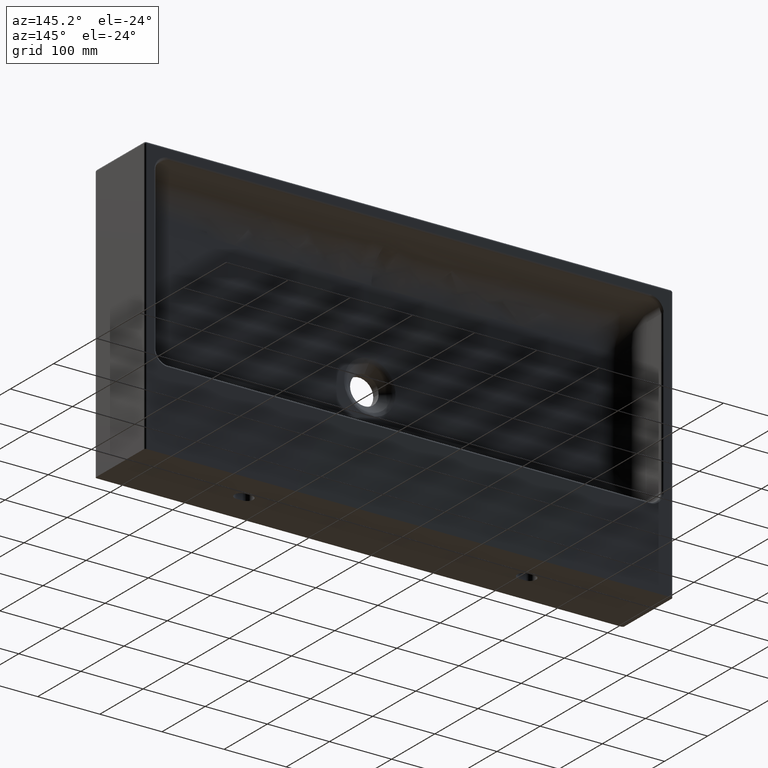
[diagram: clean part render]
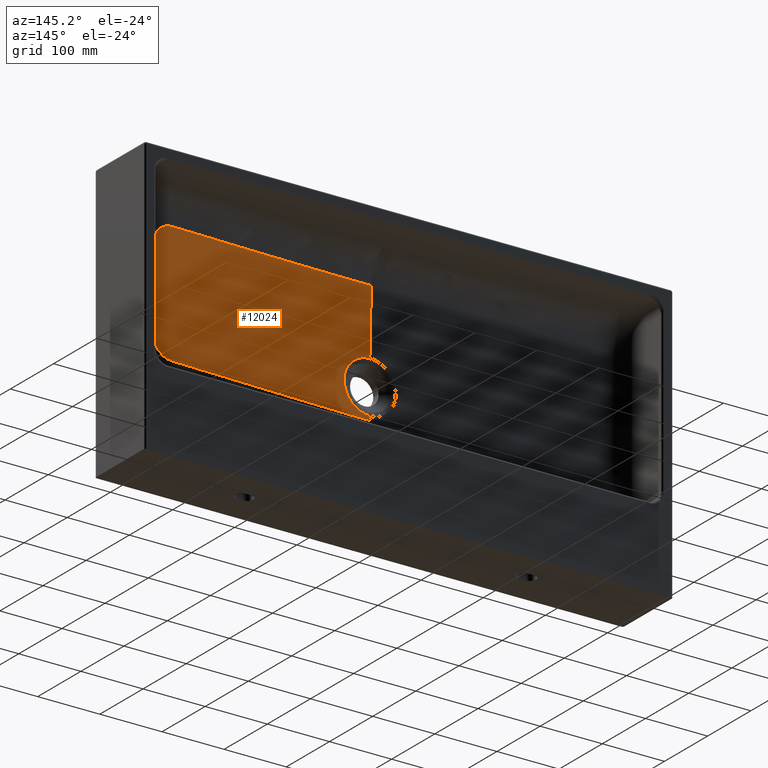
[diagram: same view with one face highlighted and labeled with its STEP entity id]
A machine part, auxiliary view. The second image highlights one B-rep face of the part: STEP entity #12024.
In plain terms, the highlighted face is a freeform B-spline surface patch.
Its self-contained STEP definition (entity closure, byte-faithful):
#229 = CARTESIAN_POINT ( 'NONE',  ( 855.6396195558003200, 36.31376933726532000, 297.7114368719310800 ) ) ;
#550 = CARTESIAN_POINT ( 'NONE',  ( 854.2220595960293400, 36.78824620362664200, 354.8353325690719100 ) ) ;
#882 = CARTESIAN_POINT ( 'NONE',  ( 822.2714356180951000, 36.02092679254093400, 375.5085100739881300 ) ) ;
#1217 = CARTESIAN_POINT ( 'NONE',  ( 659.1277172035715900, 31.17866533156643500, 375.5350238502594500 ) ) ;
#4546 = CARTESIAN_POINT ( 'NONE',  ( 540.9180189655243100, 25.12016841086123300, 222.0239084302152200 ) ) ;
#6919 = CARTESIAN_POINT ( 'NONE',  ( 774.5028618473139700, 33.40689411247238600, 181.5515650084791400 ) ) ;
#7239 = CARTESIAN_POINT ( 'NONE',  ( 832.3082375898176200, 35.39665515601758700, 182.2457294043082600 ) ) ;
#7562 = CARTESIAN_POINT ( 'NONE',  ( 855.6076786754200600, 36.10368822374177000, 214.0516146125840200 ) ) ;
#7895 = CARTESIAN_POINT ( 'NONE',  ( 855.6396593572783300, 36.45215511804173000, 316.4796993738349900 ) ) ;
#8217 = CARTESIAN_POINT ( 'NONE',  ( 851.6645876372697300, 36.77240904227130600, 360.5698420620514600 ) ) ;
#8553 = CARTESIAN_POINT ( 'NONE',  ( 814.2063833663768300, 35.76512249349739400, 375.5331151560195100 ) ) ;
#8886 = CARTESIAN_POINT ( 'NONE',  ( 556.7917571864351200, 29.02304816976652900, 375.5350201905679300 ) ) ;
#12024 = ADVANCED_FACE ( 'NONE', ( #83203 ), #35749, .T. ) ;
#12236 = CARTESIAN_POINT ( 'NONE',  ( 534.7912527390769800, 25.12016841086495200, 206.9727230712997500 ) ) ;
#14275 = CARTESIAN_POINT ( 'NONE',  ( 503.1544189375174500, 25.36486985867658500, 181.5514947450879200 ) ) ;
#14598 = CARTESIAN_POINT ( 'NONE',  ( 791.1191335427631700, 33.97893099192045000, 181.5515116535320000 ) ) ;
#14919 = CARTESIAN_POINT ( 'NONE',  ( 838.6806440939684500, 35.60635534740563900, 184.4652677834249600 ) ) ;
#15242 = CARTESIAN_POINT ( 'NONE',  ( 855.6374204995959200, 36.09608382399704100, 220.9416155493799700 ) ) ;
#15547 = CARTESIAN_POINT ( 'NONE',  ( 855.6396691252705300, 36.56529353400478000, 329.0907364944839100 ) ) ;
#15861 = CARTESIAN_POINT ( 'NONE',  ( 847.9733641581475500, 36.71502509891922000, 365.6485281254172700 ) ) ;
#16191 = CARTESIAN_POINT ( 'NONE',  ( 806.5366039858541900, 35.52264347459388500, 375.5348820144517400 ) ) ;
#16521 = CARTESIAN_POINT ( 'NONE',  ( 500.0000000000000000, 28.75519130056253300, 375.5350206123114300 ) ) ;
#18519 = CARTESIAN_POINT ( 'NONE',  ( 499.9999736063762700, 35.04968428983212900, -95.78530133354907200 ) ) ;
#18854 = DIRECTION ( 'NONE',  ( 9.165702807759771400E-008, -0.03489949711472836000, 0.9993908270046962800 ) ) ;
#19833 = CARTESIAN_POINT ( 'NONE',  ( 523.0272612818758900, 25.12016841086950300, 195.2087023349755000 ) ) ;
#20030 = CARTESIAN_POINT ( 'NONE',  ( 499.9999997745714500, 25.12016841093334200, 188.5588269886029600 ) ) ;
#21033 = ORIENTED_EDGE ( 'NONE', *, *, #80854, .F. ) ;
#21542 = CARTESIAN_POINT ( 'NONE',  ( 499.9999996805790900, 25.36486985423380600, 181.5514945624263700 ) ) ;
#22155 = CARTESIAN_POINT ( 'NONE',  ( 798.8850711470280400, 34.24653448441144800, 181.5515582879579900 ) ) ;
#22468 = CARTESIAN_POINT ( 'NONE',  ( 844.3827221026145900, 35.78793290572529200, 188.0463570016757200 ) ) ;
#22778 = CARTESIAN_POINT ( 'NONE',  ( 855.6395398125216600, 36.09256371375041500, 227.4948957764593700 ) ) ;
#23094 = CARTESIAN_POINT ( 'NONE',  ( 855.6402335827597200, 36.61903476744277000, 334.6887223012734600 ) ) ;
#23415 = CARTESIAN_POINT ( 'NONE',  ( 843.3016673193698100, 36.61785475196138900, 369.8526363519488300 ) ) ;
#23749 = CARTESIAN_POINT ( 'NONE',  ( 798.8865882091436100, 35.28188327769255000, 375.5350087430408600 ) ) ;
#27056 = CARTESIAN_POINT ( 'NONE',  ( 515.2188921440267700, 25.12016841086589400, 268.8369277101364200 ) ) ;
#27366 = CARTESIAN_POINT ( 'NONE',  ( 507.9023390648217200, 25.12016841088426800, 189.0602149401200100 ) ) ;
#28350 = LINE ( 'NONE', #33557, #88624 ) ;
#29410 = CARTESIAN_POINT ( 'NONE',  ( 522.0783350425865600, 25.51500204957157800, 181.5514546529329300 ) ) ;
#29731 = CARTESIAN_POINT ( 'NONE',  ( 806.5399590176408500, 34.51048888366437200, 181.5516608099617000 ) ) ;
#30045 = CARTESIAN_POINT ( 'NONE',  ( 849.1428739861784200, 35.93420009185499700, 192.8067339325768000 ) ) ;
#30367 = CARTESIAN_POINT ( 'NONE',  ( 855.6394662494649300, 36.09725547191556000, 243.0828655789239600 ) ) ;
#30682 = CARTESIAN_POINT ( 'NONE',  ( 855.6465509399282600, 36.67253190154756500, 339.9784208520993600 ) ) ;
#31002 = CARTESIAN_POINT ( 'NONE',  ( 837.8611017358557500, 36.48446611441613600, 372.9920867411520400 ) ) ;
#31334 = CARTESIAN_POINT ( 'NONE',  ( 791.1453035928603900, 35.03947177974809100, 375.5350182662564900 ) ) ;
#32420 = CARTESIAN_POINT ( 'NONE',  ( 499.9999999999983500, 25.12016841090519700, 271.4411730105898600 ) ) ;
#33557 = CARTESIAN_POINT ( 'NONE',  ( 500.0000000000001100, 35.04968428983212900, 555.7853013335502500 ) ) ;
#34649 = CARTESIAN_POINT ( 'NONE',  ( 529.1175423768322600, 25.12016841086633800, 259.8761761786843700 ) ) ;
#34965 = CARTESIAN_POINT ( 'NONE',  ( 499.9999997745714500, 25.12016841093334200, 188.5588269886029600 ) ) ;
#35095 = ORIENTED_EDGE ( 'NONE', *, *, #46657, .F. ) ;
#35435 = VERTEX_POINT ( 'NONE', #32420 ) ;
#35749 =( BOUNDED_SURFACE ( )  B_SPLINE_SURFACE ( 2, 1, ( 
 ( #48841, #50451 ),
 ( #47170, #47022 ),
 ( #46689, #46497 ),
 ( #46355, #46020 ),
 ( #45947, #45689 ),
 ( #45623, #45504 ),
 ( #45489, #45170 ),
 ( #45026, #44831 ),
 ( #44698, #44630 ) ),
 .UNSPECIFIED., .T., .F., .F. ) 
 B_SPLINE_SURFACE_WITH_KNOTS ( ( 3, 2, 2, 2, 3 ),
 ( 2, 2 ),
 ( 0.0000000000000000000, 963.7944488988123300, 1927.588897797624200, 2891.383346696437500, 3855.177795595249300 ),
 ( 0.0000000000000000000, 575.9214384548212100 ),
 .UNSPECIFIED. ) 
 GEOMETRIC_REPRESENTATION_ITEM ( )  RATIONAL_B_SPLINE_SURFACE ( (
 ( 1.000000000000000000, 1.000000000000000000),
 ( 0.7071067811865474600, 0.7071067811865474600),
 ( 1.000000000000000000, 1.000000000000000000),
 ( 0.7071067811865474600, 0.7071067811865474600),
 ( 1.000000000000000000, 1.000000000000000000),
 ( 0.7071067811865474600, 0.7071067811865474600),
 ( 1.000000000000000000, 1.000000000000000000),
 ( 0.7071067811865474600, 0.7071067811865474600),
 ( 1.000000000000000000, 1.000000000000000000) ) ) 
 REPRESENTATION_ITEM ( '' )  SURFACE ( )  );
#36506 = B_SPLINE_CURVE_WITH_KNOTS ( 'NONE', 3,
 ( #41619, #57284, #72348, #27056, #79936, #34649, #87500, #42273, #95089, #49949, #4546, #57610, #12236, #65165, #19833, #72674, #27366, #80256, #34965 ),
 .UNSPECIFIED., .F., .F.,
 ( 4, 1, 1, 1, 1, 1, 1, 1, 1, 1, 1, 1, 1, 1, 1, 1, 4 ),
 ( 0.0000000000000000000, 0.05636988142133857900, 0.1180171130717847000, 0.1822733104634874600, 0.2458800193041656100, 0.3095689038721242700, 0.3740717961650888400, 0.4361016992611778700, 0.5017624476318605100, 0.5601274645770119000, 0.6219678630086169500, 0.6863497962947704400, 0.7500002145816501200, 0.8136506332322380700, 0.8780325676102528300, 0.9398729677355315300, 1.000000000000000000 ),
 .UNSPECIFIED. ) ;
#37018 = CARTESIAN_POINT ( 'NONE',  ( 575.7211210343400600, 26.78982835720089600, 181.5519758309638100 ) ) ;
#37328 = CARTESIAN_POINT ( 'NONE',  ( 814.2160459525648500, 34.77532798516630700, 181.5534884608955200 ) ) ;
#37647 = CARTESIAN_POINT ( 'NONE',  ( 852.7272506412388100, 36.03934060165087100, 198.5113755564443100 ) ) ;
#37968 = CARTESIAN_POINT ( 'NONE',  ( 855.6396463644995300, 36.15505496185561200, 266.5289206812966500 ) ) ;
#38287 = CARTESIAN_POINT ( 'NONE',  ( 855.7106342276746300, 36.71116932333679000, 343.4847663314811300 ) ) ;
#38606 = CARTESIAN_POINT ( 'NONE',  ( 831.8687738611112100, 36.31899193402421100, 374.9305402448154600 ) ) ;
#38941 = CARTESIAN_POINT ( 'NONE',  ( 767.9497168371456200, 34.31918374883297000, 375.5350195423455900 ) ) ;
#41169 = DIRECTION ( 'NONE',  ( 1.069098935966106000E-008, 0.03489949711472834600, 0.9993908270047002800 ) ) ;
#41619 = CARTESIAN_POINT ( 'NONE',  ( 499.9999999999983500, 25.12016841090519700, 271.4411730105898600 ) ) ;
#42273 = CARTESIAN_POINT ( 'NONE',  ( 538.4514310531625400, 25.12016841086778400, 246.1749852668889400 ) ) ;
#42689 = EDGE_CURVE ( 'NONE', #35435, #87708, #28350, .T. ) ;
#44629 = CARTESIAN_POINT ( 'NONE',  ( 681.9724516165874800, 30.24157607653810200, 181.5515247570334300 ) ) ;
#44630 = CARTESIAN_POINT ( 'NONE',  ( 499.9999472127525500, 45.09936857966423700, -383.5706026670981100 ) ) ;
#44698 = CARTESIAN_POINT ( 'NONE',  ( 500.0000000000000000, 25.00000000000002100, 192.0000000000000000 ) ) ;
#44831 = CARTESIAN_POINT ( 'NONE',  ( -113.5706554543456700, 45.09936857966427900, -383.5705498798503800 ) ) ;
#44955 = CARTESIAN_POINT ( 'NONE',  ( 822.2675759909091100, 35.05316287549331400, 181.5791566042100800 ) ) ;
#45026 = CARTESIAN_POINT ( 'NONE',  ( 462.0000000000000600, 25.00000000000003200, 192.0000000000000000 ) ) ;
#45170 = CARTESIAN_POINT ( 'NONE',  ( -113.5706026670982900, 45.09936857966423700, 230.0000527872476000 ) ) ;
#45300 = CARTESIAN_POINT ( 'NONE',  ( 854.9429893396460300, 36.09875415055724100, 204.8736355908338900 ) ) ;
#45489 = CARTESIAN_POINT ( 'NONE',  ( 461.9999999999999400, 25.00000000000002100, 230.0000000000000000 ) ) ;
#45504 = CARTESIAN_POINT ( 'NONE',  ( -113.5705498798507400, 45.09936857966427900, 843.5706554543456800 ) ) ;
#45622 = CARTESIAN_POINT ( 'NONE',  ( 855.6396220161858500, 36.25561357382883900, 288.1351075922098600 ) ) ;
#45623 = CARTESIAN_POINT ( 'NONE',  ( 462.0000000000000600, 25.00000000000003200, 268.0000000000000000 ) ) ;
#45689 = CARTESIAN_POINT ( 'NONE',  ( 500.0000527872475700, 45.09936857966423700, 843.5706026670982300 ) ) ;
#45946 = CARTESIAN_POINT ( 'NONE',  ( 855.0340982211402000, 36.77980156977545100, 351.7609440009563300 ) ) ;
#45947 = CARTESIAN_POINT ( 'NONE',  ( 500.0000000000000000, 25.00000000000002100, 268.0000000000000000 ) ) ;
#46020 = CARTESIAN_POINT ( 'NONE',  ( 1113.570655454345600, 45.09936857966427900, 843.5705498798506600 ) ) ;
#46285 = CARTESIAN_POINT ( 'NONE',  ( 823.6269553420032700, 36.06544025619129500, 375.6087961421321800 ) ) ;
#46355 = CARTESIAN_POINT ( 'NONE',  ( 538.0000000000002300, 25.00000000000003200, 268.0000000000000000 ) ) ;
#46497 = CARTESIAN_POINT ( 'NONE',  ( 1113.570602667098200, 45.09936857966423700, 229.9999472127525200 ) ) ;
#46620 = CARTESIAN_POINT ( 'NONE',  ( 704.4056165580448100, 32.41898140528925900, 375.5350197411071300 ) ) ;
#46657 = EDGE_CURVE ( 'NONE', #35435, #72500, #36506, .T. ) ;
#46689 = CARTESIAN_POINT ( 'NONE',  ( 538.0000000000000000, 25.00000000000002100, 230.0000000000000000 ) ) ;
#47022 = CARTESIAN_POINT ( 'NONE',  ( 1113.570549879850700, 45.09936857966427900, -383.5706554543456800 ) ) ;
#47170 = CARTESIAN_POINT ( 'NONE',  ( 538.0000000000002300, 25.00000000000003200, 192.0000000000000000 ) ) ;
#48841 = CARTESIAN_POINT ( 'NONE',  ( 500.0000000000000000, 25.00000000000002100, 192.0000000000000000 ) ) ;
#49949 = CARTESIAN_POINT ( 'NONE',  ( 541.7045293325072600, 25.12016841087433100, 230.0857517893019500 ) ) ;
#50451 = CARTESIAN_POINT ( 'NONE',  ( 499.9999472127525500, 45.09936857966423700, -383.5706026670981100 ) ) ;
#52302 = CARTESIAN_POINT ( 'NONE',  ( 762.7323097788314500, 33.00241561457573200, 181.5516370464012300 ) ) ;
#52620 = CARTESIAN_POINT ( 'NONE',  ( 829.0877207451237600, 35.28828451761795300, 181.6656990583169300 ) ) ;
#52949 = CARTESIAN_POINT ( 'NONE',  ( 855.7279714944911600, 36.10733152947393200, 213.9732669415843100 ) ) ;
#53278 = CARTESIAN_POINT ( 'NONE',  ( 855.6395513628614300, 36.38252527622215400, 307.4995474840671900 ) ) ;
#53612 = CARTESIAN_POINT ( 'NONE',  ( 853.0960406836657100, 36.78554824055385800, 357.7580489550526300 ) ) ;
#53948 = CARTESIAN_POINT ( 'NONE',  ( 817.8824665134376300, 35.88182926211125300, 375.5421213635768300 ) ) ;
#54284 = CARTESIAN_POINT ( 'NONE',  ( 609.7821843840469000, 29.98833875039225200, 375.5350185494552300 ) ) ;
#57284 = CARTESIAN_POINT ( 'NONE',  ( 502.4462726806766600, 25.12016841086578400, 271.4412624081160700 ) ) ;
#57610 = CARTESIAN_POINT ( 'NONE',  ( 538.6475054668463800, 25.12016841086855800, 214.3024519171867400 ) ) ;
#59468 = LINE ( 'NONE', #18519, #97118 ) ;
#59949 = CARTESIAN_POINT ( 'NONE',  ( 787.0125861096044000, 33.83747356735988600, 181.5515654702248000 ) ) ;
#60278 = CARTESIAN_POINT ( 'NONE',  ( 835.5705455849642900, 35.50489633081793500, 183.1729021967919700 ) ) ;
#60597 = CARTESIAN_POINT ( 'NONE',  ( 855.6483869182662800, 36.09929469217149000, 218.0007584148654900 ) ) ;
#60905 = CARTESIAN_POINT ( 'NONE',  ( 855.6395596496380400, 36.54658459197851500, 327.1353546712351800 ) ) ;
#61233 = CARTESIAN_POINT ( 'NONE',  ( 849.9500571587499300, 36.74877320545455500, 363.2064911497092200 ) ) ;
#61568 = CARTESIAN_POINT ( 'NONE',  ( 810.3517829177556000, 35.64313981259525800, 375.5355286078872200 ) ) ;
#61907 = CARTESIAN_POINT ( 'NONE',  ( 518.9270902345375600, 28.75515962533403800, 375.5350189469577900 ) ) ;
#65165 = CARTESIAN_POINT ( 'NONE',  ( 529.4993530845563300, 25.12016841086450800, 200.5006729819059800 ) ) ;
#67173 = CARTESIAN_POINT ( 'NONE',  ( 499.9999996805790900, 25.36486985423380600, 181.5514945624263700 ) ) ;
#67494 = CARTESIAN_POINT ( 'NONE',  ( 795.1206074354723800, 34.11678932454792300, 181.5514909436100500 ) ) ;
#67811 = CARTESIAN_POINT ( 'NONE',  ( 841.6282683336143000, 35.70098405892069600, 186.0924038379617400 ) ) ;
#68130 = CARTESIAN_POINT ( 'NONE',  ( 855.6402931277630200, 36.09372521781112700, 224.0593231782748100 ) ) ;
#68242 = ORIENTED_EDGE ( 'NONE', *, *, #92675, .T. ) ;
#68440 = CARTESIAN_POINT ( 'NONE',  ( 855.6395589625947200, 36.59352456453096600, 332.0793925314902700 ) ) ;
#68758 = CARTESIAN_POINT ( 'NONE',  ( 845.7437320182447100, 36.67113239093938400, 367.8760198237964100 ) ) ;
#69080 = CARTESIAN_POINT ( 'NONE',  ( 802.7220408522861100, 35.40244736529602000, 375.5350552141245500 ) ) ;
#72348 = CARTESIAN_POINT ( 'NONE',  ( 507.5678561864310700, 25.12016841086556300, 270.9865912421206500 ) ) ;
#72500 = VERTEX_POINT ( 'NONE', #20030 ) ;
#72674 = CARTESIAN_POINT ( 'NONE',  ( 515.6975646795075400, 25.12016841085751300, 191.3525711388273000 ) ) ;
#74688 = CARTESIAN_POINT ( 'NONE',  ( 509.4626924220108300, 25.38818190581654100, 181.5514852155939400 ) ) ;
#75010 = CARTESIAN_POINT ( 'NONE',  ( 802.7192092569516700, 34.37872185976614500, 181.5514606494458000 ) ) ;
#75323 = CARTESIAN_POINT ( 'NONE',  ( 846.8974241158331300, 35.86591614203382500, 190.2935907274486500 ) ) ;
#75646 = CARTESIAN_POINT ( 'NONE',  ( 855.6396648394140800, 36.09137312410304300, 229.8962542002463700 ) ) ;
#75957 = CARTESIAN_POINT ( 'NONE',  ( 855.6379092547339300, 36.64672961732101400, 337.4690284416735700 ) ) ;
#76275 = CARTESIAN_POINT ( 'NONE',  ( 840.6638241568580300, 36.55544187068277000, 371.5655371597862300 ) ) ;
#76608 = CARTESIAN_POINT ( 'NONE',  ( 795.1101694107420600, 35.16344652242670300, 375.5350212432696300 ) ) ;
#79757 = B_SPLINE_CURVE_WITH_KNOTS ( 'NONE', 3,
 ( #67173, #14275, #74688, #29410, #82272, #37018, #89842, #44629, #97440, #52302, #6919, #59949, #14598, #67494, #22155, #75010, #29731, #82592, #37328, #90164, #44955, #97761, #52620, #7239, #60278, #14919, #67811, #22468, #75323, #30045, #82907, #37647, #90480, #45300, #98080, #52949, #7562, #60597, #15242, #68130, #22778, #75646, #30367, #83228, #37968, #90807, #45622, #229, #53278, #7895, #60905, #15547, #68440, #23094, #75957, #30682, #83548, #38287, #91129, #45946, #550, #53612, #8217, #61233, #15861, #68758, #23415, #76275, #31002, #83876, #38606, #91447, #46285, #882, #53948, #8553, #61568, #16191, #69080, #23749, #76608, #31334, #84201, #38941, #91783, #46620, #1217, #54284, #8886, #61907, #16521 ),
 .UNSPECIFIED., .F., .F.,
 ( 4, 1, 1, 1, 1, 1, 1, 1, 1, 1, 1, 1, 1, 1, 1, 1, 1, 1, 1, 1, 1, 1, 1, 1, 1, 1, 1, 1, 1, 1, 1, 1, 1, 1, 1, 1, 1, 1, 1, 1, 1, 1, 1, 1, 1, 1, 1, 1, 1, 1, 1, 1, 1, 1, 1, 1, 1, 1, 1, 1, 1, 1, 1, 1, 1, 1, 1, 1, 1, 1, 1, 1, 1, 1, 1, 1, 1, 1, 1, 1, 1, 1, 1, 1, 1, 1, 1, 1, 4 ),
 ( 0.0000000000000000000, 0.009783222956079747800, 0.01956644591215902700, 0.03913289182431793600, 0.07826578364863563700, 0.1173986754729536800, 0.1880553551796146900, 0.2587120348862758100, 0.2715582941629831600, 0.2844045534396905100, 0.2972508127163980800, 0.3039761339519405100, 0.3107014551874827700, 0.3174267764230253000, 0.3241520976585675600, 0.3308774188941097100, 0.3376027401296519700, 0.3443280613651945000, 0.3510533826007366500, 0.3577787038362790800, 0.3645040250718214500, 0.3673751379112779000, 0.3702462507507337500, 0.3731173635901900400, 0.3759884764296462800, 0.3788595892691022400, 0.3817307021085586900, 0.3846018149480148800, 0.3874729277874710600, 0.3903440406269271800, 0.3932151534663835800, 0.3960862663058394300, 0.3989573791452957800, 0.4018284919847518500, 0.4046996048242083000, 0.4122892824116839400, 0.4198789599991596400, 0.4274686375866351700, 0.4350583151741109200, 0.4426479927615867300, 0.4502376703490621500, 0.4626724753530540000, 0.4751072803570455800, 0.4875420853610372100, 0.4999768903650289000, 0.5099248403666334400, 0.5198727903682378600, 0.5298207403698421700, 0.5397686903714465900, 0.5497166403730512400, 0.5562319463698045500, 0.5627472523665580900, 0.5692625583633115200, 0.5757778643600649500, 0.5822931703568184900, 0.5888084763535718100, 0.5953237823503251300, 0.5980033200935497300, 0.6006828578367742200, 0.6033623955799987100, 0.6060419333232230900, 0.6087214710664478100, 0.6114010088096723000, 0.6140805465528969000, 0.6167600842961212800, 0.6194396220393458800, 0.6221191597825704900, 0.6247986975257950900, 0.6274782352690194700, 0.6301577730122440700, 0.6328373107554683400, 0.6355168484986929400, 0.6422419717558277600, 0.6489670950129625700, 0.6556922182700971600, 0.6624173415272317500, 0.6691424647843666800, 0.6758675880415014900, 0.6825927112986361900, 0.6893178345557710000, 0.6960429578129057000, 0.7027680810700406300, 0.7220363216421913400, 0.7413045622143423800, 0.7884042652761447100, 0.8355039683379470400, 0.8826036713997493800, 0.9413018356998746900, 1.000000000000000000 ),
 .UNSPECIFIED. ) ;
#79936 = CARTESIAN_POINT ( 'NONE',  ( 522.5824435307416700, 25.12016841086539600, 265.0807874636315100 ) ) ;
#80256 = CARTESIAN_POINT ( 'NONE',  ( 502.6094151089993700, 25.12016841082914800, 188.5586656628203700 ) ) ;
#80830 = VERTEX_POINT ( 'NONE', #21542 ) ;
#80854 = EDGE_CURVE ( 'NONE', #80830, #87708, #79757, .T. ) ;
#82272 = CARTESIAN_POINT ( 'NONE',  ( 544.1568677766073300, 25.91319015921556000, 181.5514446695711400 ) ) ;
#82592 = CARTESIAN_POINT ( 'NONE',  ( 810.3517038224108500, 34.64198863308720900, 181.5510120930886200 ) ) ;
#82907 = CARTESIAN_POINT ( 'NONE',  ( 851.0889028424157900, 35.99204501918485000, 195.5469495358507900 ) ) ;
#83203 = FACE_OUTER_BOUND ( 'NONE', #96303, .T. ) ;
#83228 = CARTESIAN_POINT ( 'NONE',  ( 855.6396035317271800, 36.11921951125990700, 254.2714262549756100 ) ) ;
#83548 = CARTESIAN_POINT ( 'NONE',  ( 855.6145220643509200, 36.70727167940868400, 343.3768354172708000 ) ) ;
#83876 = CARTESIAN_POINT ( 'NONE',  ( 834.9303492800336200, 36.40581221477717800, 374.1202626618664900 ) ) ;
#84201 = CARTESIAN_POINT ( 'NONE',  ( 785.7814751481291800, 34.87194954423378600, 375.5350198877979400 ) ) ;
#87500 = CARTESIAN_POINT ( 'NONE',  ( 534.4958001949185000, 25.12016841086467500, 253.4689465740627300 ) ) ;
#87708 = VERTEX_POINT ( 'NONE', #95728 ) ;
#88624 = VECTOR ( 'NONE', #41169, 1000.000000000000100 ) ;
#89842 = CARTESIAN_POINT ( 'NONE',  ( 623.6732192095648800, 28.29151820013997600, 181.5512561132940400 ) ) ;
#90164 = CARTESIAN_POINT ( 'NONE',  ( 817.8768743020015100, 34.90173570326171400, 181.5441046036831900 ) ) ;
#90480 = CARTESIAN_POINT ( 'NONE',  ( 854.0177995462563600, 36.07506190710607500, 201.6206561600722900 ) ) ;
#90807 = CARTESIAN_POINT ( 'NONE',  ( 855.6395944222942900, 36.20150515663206600, 277.6831199227024700 ) ) ;
#91129 = CARTESIAN_POINT ( 'NONE',  ( 855.5406493651207700, 36.76303546076020700, 348.7730054314682200 ) ) ;
#91447 = CARTESIAN_POINT ( 'NONE',  ( 828.8472206854826300, 36.22951043222133200, 375.4366655997873700 ) ) ;
#91783 = CARTESIAN_POINT ( 'NONE',  ( 741.8204836917561800, 33.52420929262295600, 375.5350184007199300 ) ) ;
#92675 = EDGE_CURVE ( 'NONE', #80830, #72500, #59468, .T. ) ;
#95089 = CARTESIAN_POINT ( 'NONE',  ( 540.9134616966638300, 25.12016841086140000, 238.1644263847058500 ) ) ;
#95728 = CARTESIAN_POINT ( 'NONE',  ( 500.0000000000000000, 28.75519130056253300, 375.5350206123114300 ) ) ;
#96303 = EDGE_LOOP ( 'NONE', ( #68242, #35095, #97720, #21033 ) ) ;
#97118 = VECTOR ( 'NONE', #18854, 1000.000000000000100 ) ;
#97440 = CARTESIAN_POINT ( 'NONE',  ( 731.3071377976261800, 31.92401119747817600, 181.5513518737338400 ) ) ;
#97720 = ORIENTED_EDGE ( 'NONE', *, *, #42689, .T. ) ;
#97761 = CARTESIAN_POINT ( 'NONE',  ( 823.6615256340569400, 35.10183632556839900, 181.4733281842079900 ) ) ;
#98080 = CARTESIAN_POINT ( 'NONE',  ( 855.5271925506664300, 36.11157566525247400, 208.1007575274255100 ) ) ;